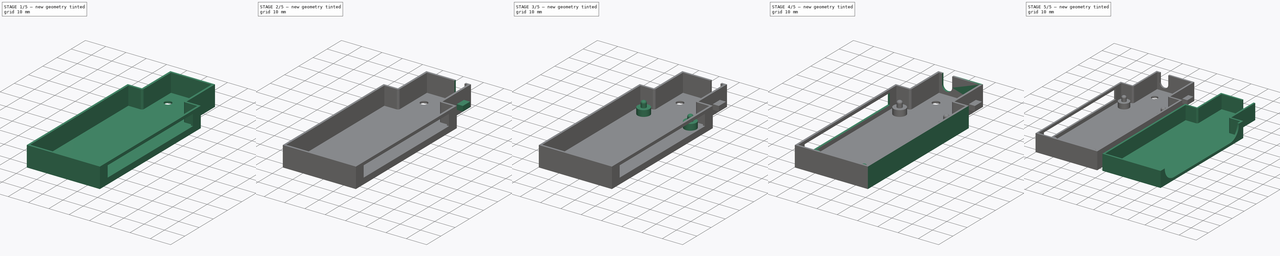
[diagram: build sequence overview — one tinted view per stage of 5, left to right]
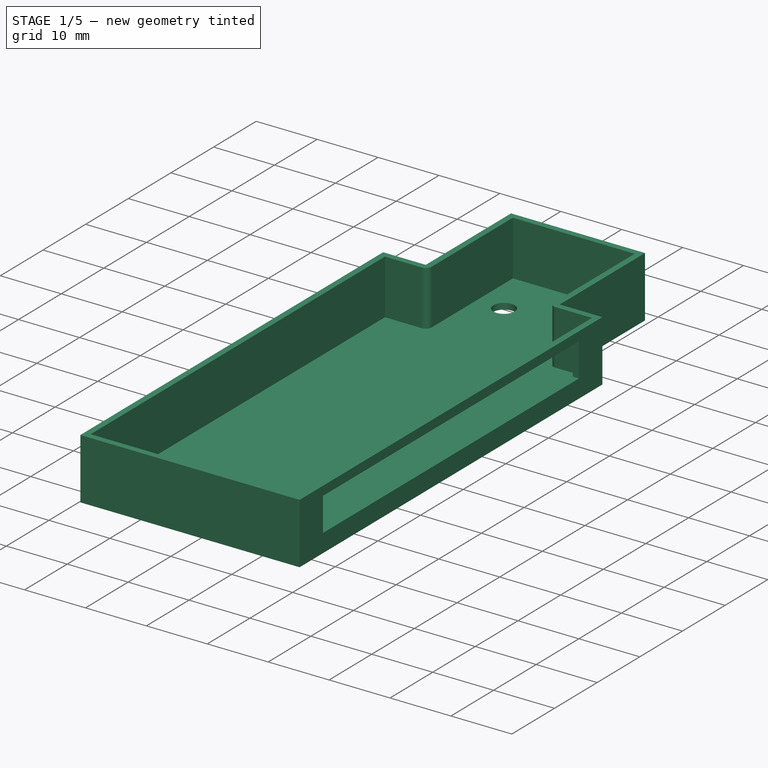
[diagram: stage 1 of 5 — iso view after this stage's code; geometry added in this stage tinted green]
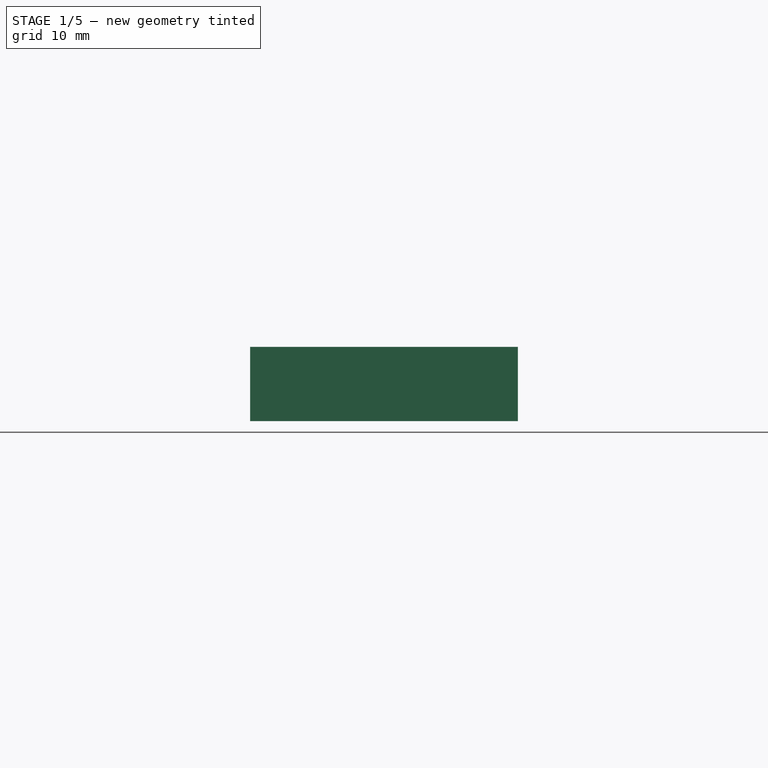
[diagram: stage 1 of 5 — front view after this stage's code; geometry added in this stage tinted green]
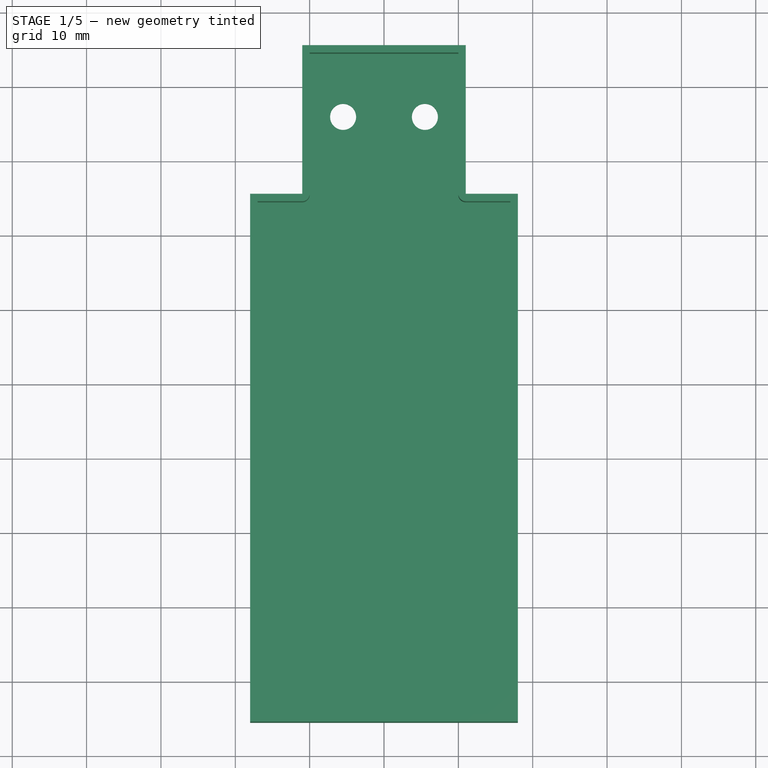
[diagram: stage 1 of 5 — top view after this stage's code; geometry added in this stage tinted green]
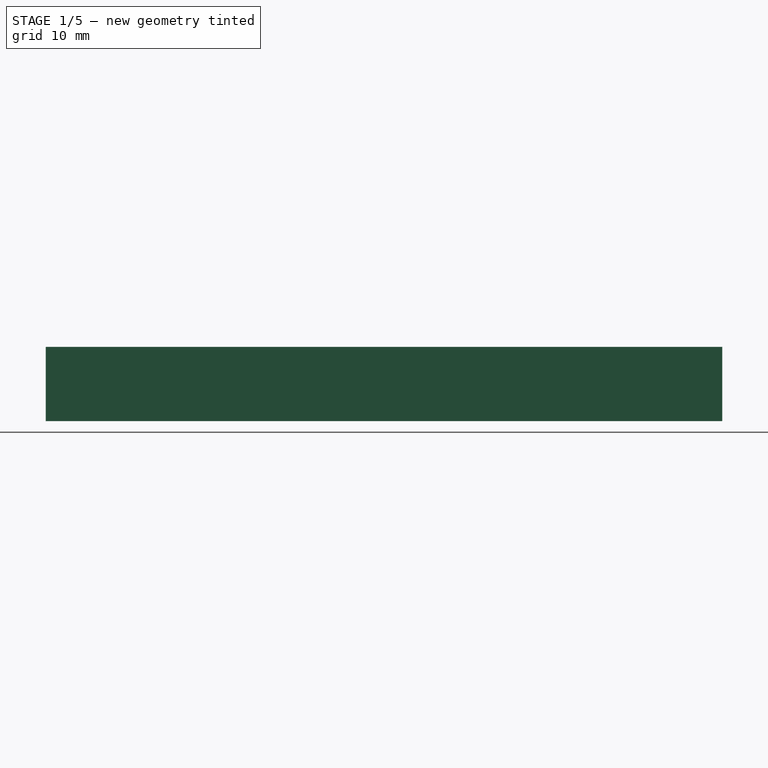
[diagram: stage 1 of 5 — right view after this stage's code; geometry added in this stage tinted green]
FCSTD DOCUMENT  (FreeCAD 0.18R4 (GitTag))
Label: BottyCase_FreeCAD
License: All rights reserved
LicenseURL: http://en.wikipedia.org/wiki/All_rights_reserved
objects: Sketcher::SketchObject×12, PartDesign::Pad×7, PartDesign::Pocket×5, PartDesign::Body×3, PartDesign::Fillet×2, PartDesign::Mirrored×2, PartDesign::Thickness×2, Part::FeaturePython×1, Part::Mirroring×1
note: 47 computed .brp shape members not serialized (recipe doc carries the construction recipe); baked Part::Feature solids carry a one-line shape summary decoded from their .brp

FEATURE [PartDesign::Body] Body  label="MountingPlate"
  Group = -> [Sketch,Pad,Sketch001,Pad001,Sketch002,Pad002,Fillet,Mirrored,Mirrored001,Fillet001]
  Origin = -> Origin
  Tip = -> Fillet001
FEATURE [Sketcher::SketchObject] Sketch003
  MapMode = 5
  Support = -> [XY_Plane001]
  sketch-geometry (8):
    g0: LineSegment StartX=-18 StartY=35.5 StartZ=0 EndX=-11 EndY=35.5 EndZ=0
    g1: LineSegment StartX=18 StartY=35.5 StartZ=0 EndX=18 EndY=-35.5 EndZ=0
    g2: LineSegment StartX=18 StartY=-35.5 StartZ=0 EndX=-18 EndY=-35.5 EndZ=0
    g3: LineSegment StartX=-18 StartY=-35.5 StartZ=0 EndX=-18 EndY=35.5 EndZ=0
    g4: LineSegment StartX=-11 StartY=55.5 StartZ=0 EndX=11 EndY=55.5 EndZ=0
    g5: LineSegment StartX=11 StartY=55.5 StartZ=0 EndX=11 EndY=35.5 EndZ=0
    g6: LineSegment StartX=-11 StartY=35.5 StartZ=0 EndX=-11 EndY=55.5 EndZ=0
    g7: LineSegment StartX=11 StartY=35.5 StartZ=0 EndX=18 EndY=35.5 EndZ=0
  constraints (20):
    c: Coincident(g7,g1)
    c: Coincident(g1,g2)
    c: Coincident(g2,g3)
    c: Coincident(g3,g0)
    c: Horizontal(g2)
    c: Vertical(g3)
    c: Symmetric(g7,g0,g-2)
    c: Symmetric(g7,g1,g-1)
    c: DistanceX(g3,g7) = 36
    c: DistanceY(g1,g1) = 71
    c: Coincident(g4,g5)
    c: Coincident(g6,g4)
    c: Vertical(g5)
    c: Vertical(g6)
    c: DistanceX(g4,g4) = 22
    c: DistanceY(g5,g5) = 20
    c: Symmetric(g4,g4,g-2)
    c: Tangent(g0,g7)
    c: Coincident(g5,g7)
    c: Coincident(g6,g0)
FEATURE [PartDesign::Pad] Pad003
  Length = 10
  Length2 = 100
  Profile = -> Sketch003
  Type = 0
FEATURE [PartDesign::Thickness] Thickness
  Base = -> Pad003 [Face10]
  BaseFeature = -> Pad003
  Join = 0
  Mode = 0
  Reversed = true
  Value = 1
FEATURE [Sketcher::SketchObject] Sketch004
  MapMode = 5
  Placement = pos=(18,0,0) rot=(0.57735,0.57735,0.57735;2.0944rad)
  Support = -> [Thickness]
  sketch-geometry (4):
    g0: LineSegment StartX=-30 StartY=3 StartZ=0 EndX=30 EndY=3 EndZ=0
    g1: LineSegment StartX=30 StartY=3 StartZ=0 EndX=30 EndY=8.5 EndZ=0
    g2: LineSegment StartX=30 StartY=8.5 StartZ=0 EndX=-30 EndY=8.5 EndZ=0
    g3: LineSegment StartX=-30 StartY=8.5 StartZ=0 EndX=-30 EndY=3 EndZ=0
  constraints (11):
    c: Coincident(g0,g1)
    c: Coincident(g1,g2)
    c: Coincident(g2,g3)
    c: Coincident(g3,g0)
    c: Horizontal(g0)
    c: Vertical(g1)
    c: Vertical(g3)
    c: Symmetric(g2,g1,g-2)
    c: DistanceX(g2,g2) = 60
    c: DistanceY(g3,g3) = 5.5
    c: DistanceY(g-1,g0) = 3
FEATURE [PartDesign::Pocket] Pocket
  BaseFeature = -> Thickness
  Length = 1
  Length2 = 100
  Profile = -> Sketch004
  Type = 0
FEATURE [Sketcher::SketchObject] Sketch005
  ExternalGeometry = -> [Pocket]
  MapMode = 5
  Placement = pos=(0,0,0) rot=(1,0,0;3.14159rad)
  Support = -> [Pocket]
  sketch-geometry (2):
    g0: Circle CenterX=5.5 CenterY=-46 CenterZ=0 NormalX=0 NormalY=0 NormalZ=1 AngleXU=0 Radius=1.75
    g1: Circle CenterX=-5.5 CenterY=-46 CenterZ=0 NormalX=0 NormalY=0 NormalZ=1 AngleXU=0 Radius=1.75
  constraints (6):
    c: Radius(g0) = 1.75
    c: DistanceX(g0,g-3) = 5.5
    c: DistanceY(g-3,g0) = 9.5
    c: Equal(g0,g1) = 1.75
    c: DistanceY(g-3,g1) = 9.5
    c: DistanceX(g-3,g1) = 5.5
FEATURE [PartDesign::Pocket] Pocket001
  BaseFeature = -> Pocket
  Length = 1
  Length2 = 100
  Profile = -> Sketch005
  Type = 0
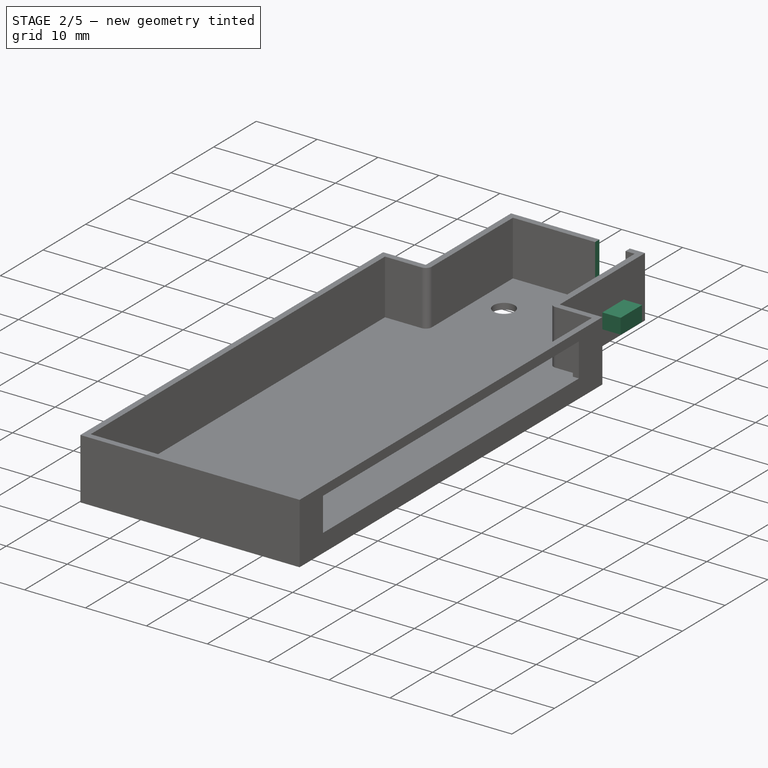
[diagram: stage 2 of 5 — iso view after this stage's code; geometry added in this stage tinted green]
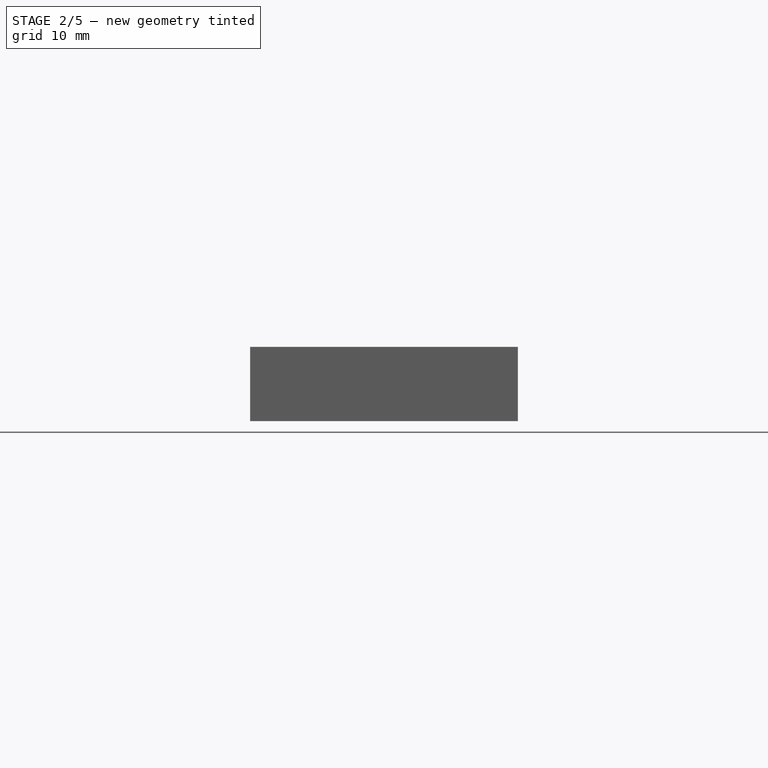
[diagram: stage 2 of 5 — front view after this stage's code; geometry added in this stage tinted green]
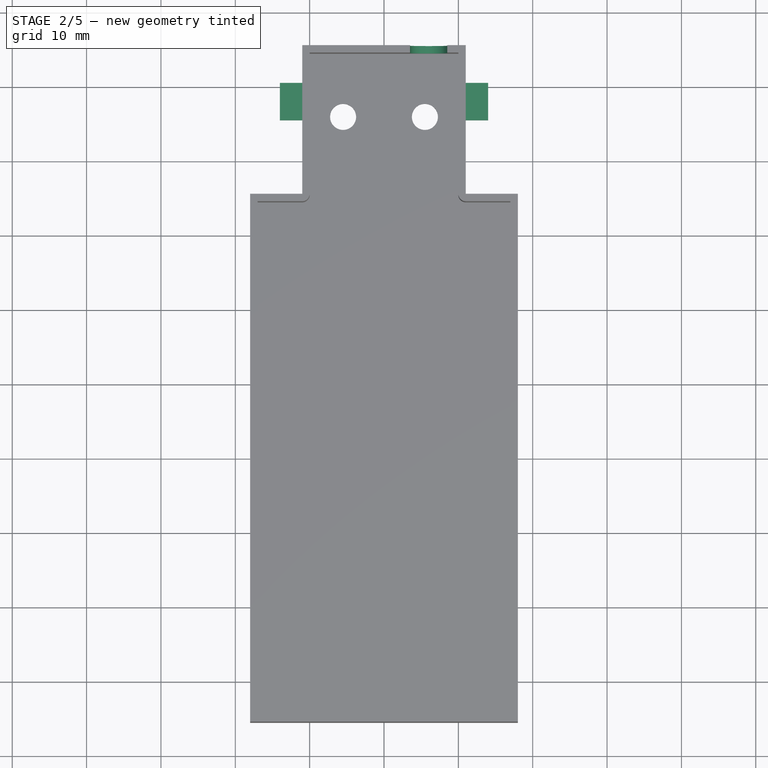
[diagram: stage 2 of 5 — top view after this stage's code; geometry added in this stage tinted green]
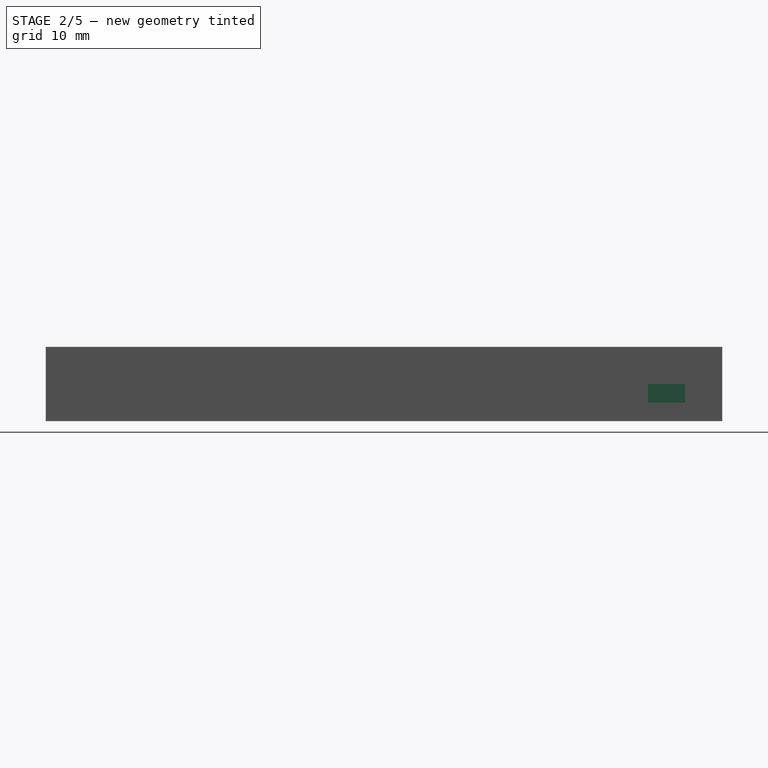
[diagram: stage 2 of 5 — right view after this stage's code; geometry added in this stage tinted green]
FEATURE [Sketcher::SketchObject] Sketch
  MapMode = 5
  Support = -> [XY_Plane]
  sketch-geometry (4):
    g0: LineSegment StartX=-15 StartY=32.5 StartZ=0 EndX=15 EndY=32.5 EndZ=0
    g1: LineSegment StartX=15 StartY=32.5 StartZ=0 EndX=15 EndY=-32.5 EndZ=0
    g2: LineSegment StartX=15 StartY=-32.5 StartZ=0 EndX=-15 EndY=-32.5 EndZ=0
    g3: LineSegment StartX=-15 StartY=-32.5 StartZ=0 EndX=-15 EndY=32.5 EndZ=0
  constraints (10):
    c: Coincident(g0,g1)
    c: Coincident(g1,g2)
    c: Coincident(g2,g3)
    c: Coincident(g3,g0)
    c: Horizontal(g2)
    c: Vertical(g1)
    c: DistanceY(g3,g3) = 65
    c: DistanceX(g0,g0) = 30
    c: Symmetric(g0,g0,g-2)
    c: Symmetric(g0,g2,g-1)
FEATURE [PartDesign::Pad] Pad  label="Base"
  Length = 1
  Length2 = 100
  Profile = -> Sketch
  Type = 0
FEATURE [PartDesign::Body] Body002  label="BackPlate"
  Group = -> [Sketch008,Pad005,Thickness001,Sketch009,Pocket003,Sketch010,Pocket004]
  Origin = -> Origin002
  Tip = -> Pocket004
FEATURE [PartDesign::Pocket] Pocket005
  Length = 5
  Length2 = 100
  Profile = -> Sketch006
  Type = 0
FEATURE [Sketcher::SketchObject] CopySketch011
  Placement = pos=(11,0,0) rot=(0.57735,0.57735,0.57735;2.0944rad)
  sketch-geometry (4):
    g0: LineSegment StartX=45.5 StartY=5 StartZ=0 EndX=50.5 EndY=5 EndZ=0
    g1: LineSegment StartX=50.5 StartY=5 StartZ=0 EndX=50.5 EndY=2.5 EndZ=0
    g2: LineSegment StartX=50.5 StartY=2.5 StartZ=0 EndX=45.5 EndY=2.5 EndZ=0
    g3: LineSegment StartX=45.5 StartY=2.5 StartZ=0 EndX=45.5 EndY=5 EndZ=0
  constraints (10):
    c: Coincident(g0,g1)
    c: Coincident(g1,g2)
    c: Coincident(g2,g3)
    c: Coincident(g3,g0)
    c: Horizontal(g0)
    c: Horizontal(g2)
    c: Vertical(g1)
    c: Vertical(g3)
    c: DistanceY(g1,g1) = 2.5
    c: DistanceX(g0,g0) = 5
FEATURE [PartDesign::Pad] Pad006
  BaseFeature = -> Pocket005
  Length = 3
  Length2 = 100
  Profile = -> CopySketch011
  Type = 0
FEATURE [Sketcher::SketchObject] Sketch012
  ExternalGeometry = -> [Pad003]
  MapMode = 5
  Placement = pos=(-11,0,0) rot=(0.57735,-0.57735,-0.57735;2.0944rad)
  Support = -> [Pad003]
  sketch-geometry (4):
    g0: LineSegment StartX=-50.5 StartY=5 StartZ=0 EndX=-45.5 EndY=5 EndZ=0
    g1: LineSegment StartX=-45.5 StartY=5 StartZ=0 EndX=-45.5 EndY=2.5 EndZ=0
    g2: LineSegment StartX=-45.5 StartY=2.5 StartZ=0 EndX=-50.5 EndY=2.5 EndZ=0
    g3: LineSegment StartX=-50.5 StartY=2.5 StartZ=0 EndX=-50.5 EndY=5 EndZ=0
  constraints (12):
    c: Coincident(g0,g1)
    c: Coincident(g1,g2)
    c: Coincident(g2,g3)
    c: Coincident(g3,g0)
    c: Horizontal(g0)
    c: Horizontal(g2)
    c: Vertical(g1)
    c: Vertical(g3)
    c: DistanceX(g-3,g0) = 5
    c: DistanceX(g2,g2) = 5
    c: DistanceY(g0,g-3) = 5
    c: DistanceY(g3,g3) = 2.5
FEATURE [PartDesign::Pad] Pad007
  BaseFeature = -> Pad006
  Length = 3
  Length2 = 100
  Profile = -> Sketch012
  Type = 0
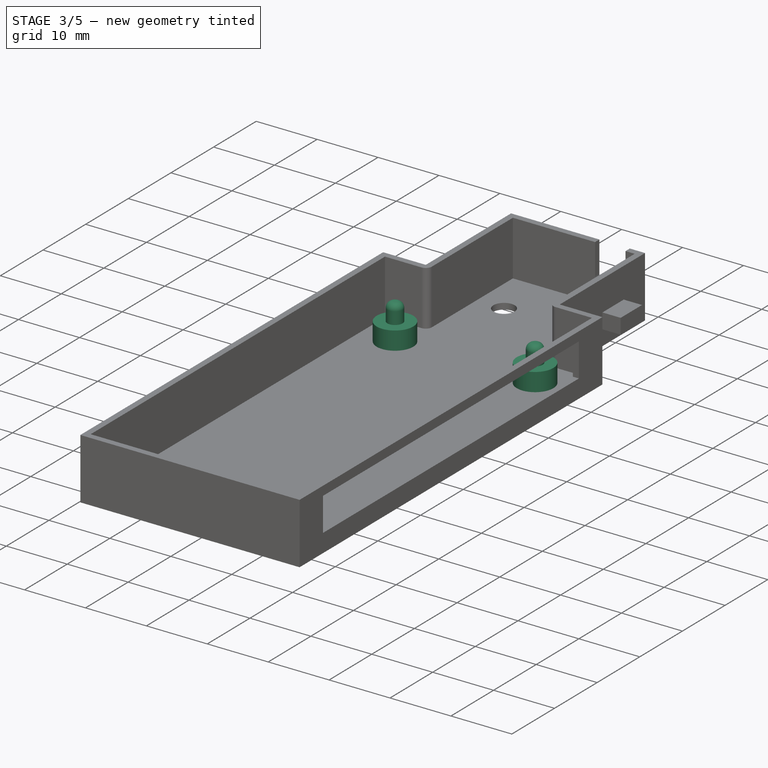
[diagram: stage 3 of 5 — iso view after this stage's code; geometry added in this stage tinted green]
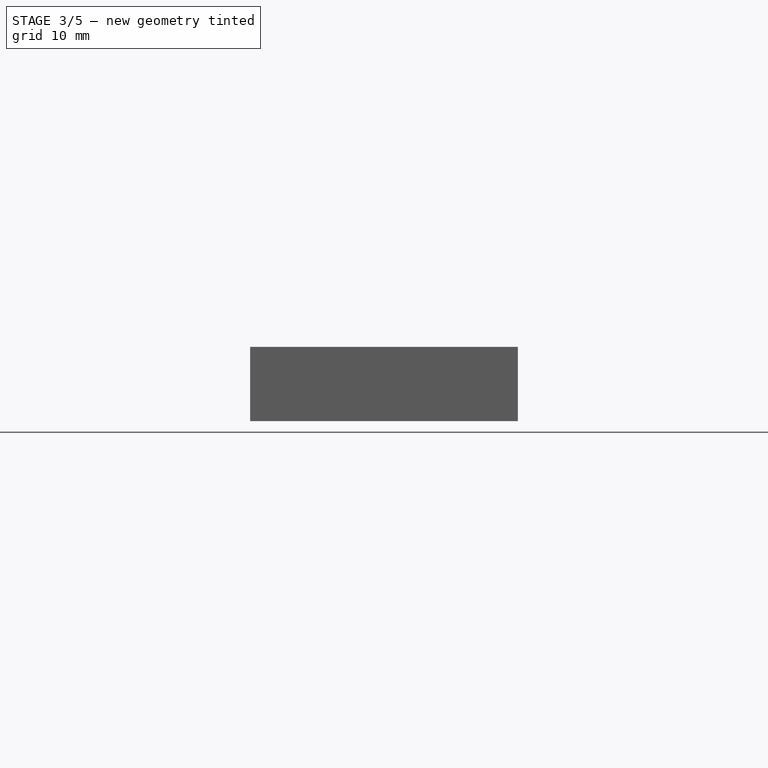
[diagram: stage 3 of 5 — front view after this stage's code; geometry added in this stage tinted green]
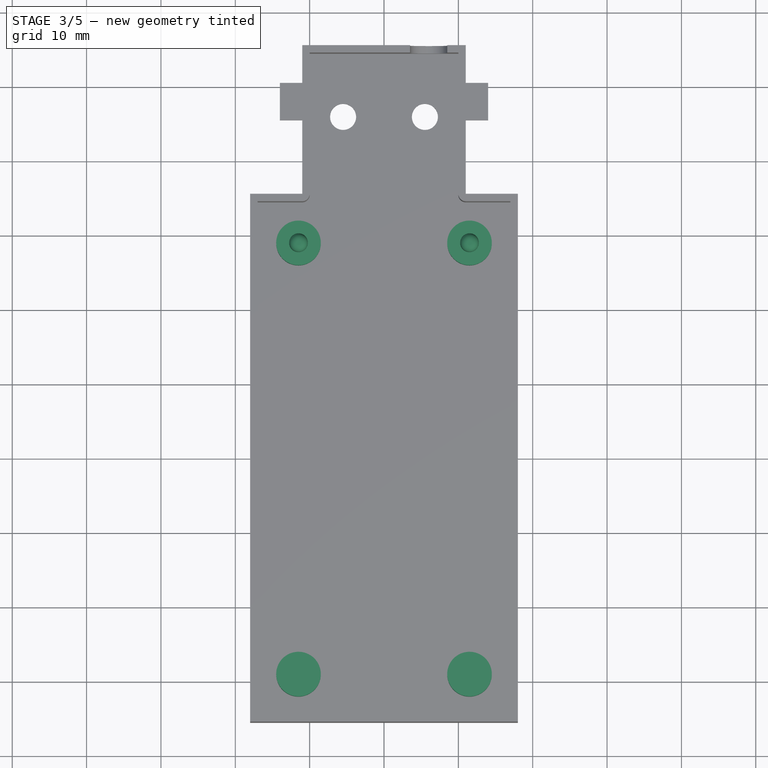
[diagram: stage 3 of 5 — top view after this stage's code; geometry added in this stage tinted green]
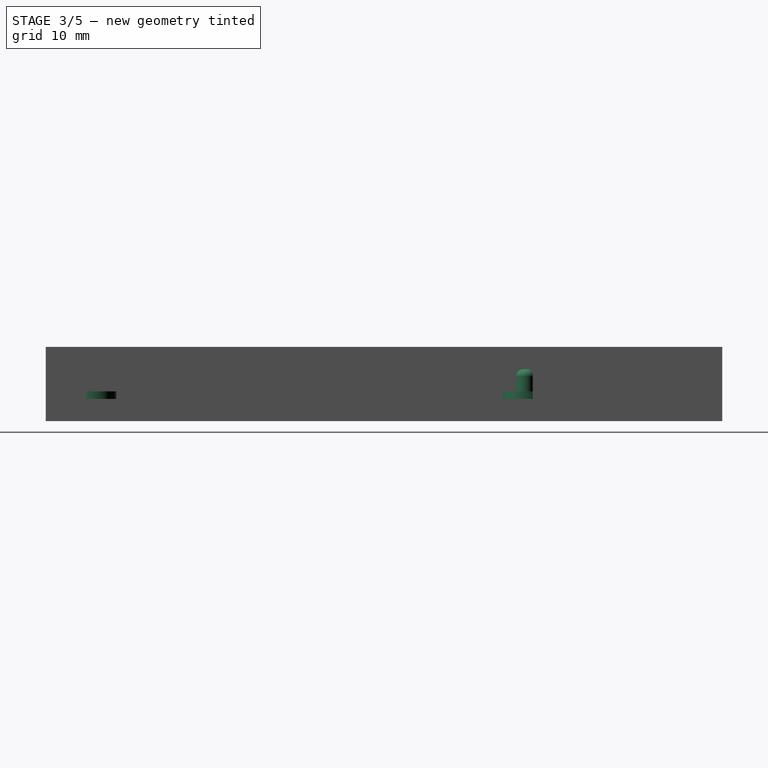
[diagram: stage 3 of 5 — right view after this stage's code; geometry added in this stage tinted green]
FEATURE [Sketcher::SketchObject] Sketch001
  ExternalGeometry = -> [Pad]
  MapMode = 5
  Placement = pos=(0,0,1) rot=(0,0,1;0rad)
  Support = -> [Pad]
  sketch-geometry (2):
    g0: Circle CenterX=-11.5 CenterY=29 CenterZ=0 NormalX=0 NormalY=0 NormalZ=1 AngleXU=0 Radius=3
    g1: Circle CenterX=11.5 CenterY=29 CenterZ=0 NormalX=0 NormalY=0 NormalZ=1 AngleXU=0 Radius=3
  constraints (6):
    c: Radius(g0) = 3
    c: DistanceX(g-3,g0) = 3.5
    c: DistanceY(g0,g-3) = 3.5
    c: Equal(g0,g1) = 3
    c: DistanceX(g1,g-3) = 3.5
    c: DistanceY(g1,g-3) = 3.5
FEATURE [PartDesign::Pad] Pad001  label="BaseMounts"
  BaseFeature = -> Pad
  Length = 3
  Length2 = 100
  Profile = -> Sketch001
  Type = 0
FEATURE [Sketcher::SketchObject] Sketch002
  ExternalGeometry = -> [Pad001]
  MapMode = 5
  Placement = pos=(0,0,4) rot=(0,0,1;0rad)
  Support = -> [Pad001]
  sketch-geometry (2):
    g0: Circle CenterX=-11.5 CenterY=29 CenterZ=0 NormalX=0 NormalY=0 NormalZ=1 AngleXU=0 Radius=1.25
    g1: Circle CenterX=11.5 CenterY=29 CenterZ=0 NormalX=0 NormalY=0 NormalZ=1 AngleXU=0 Radius=1.25
  constraints (4):
    c: Radius(g1) = 1.25
    c: Radius(g0) = 1.25
    c: Coincident(g0,g-3)
    c: Coincident(g1,g-4)
FEATURE [PartDesign::Pad] Pad002  label="MountingPegs"
  BaseFeature = -> Pad001
  Length = 3
  Length2 = 100
  Profile = -> Sketch002
  Type = 0
FEATURE [PartDesign::Fillet] Fillet
  Base = -> Pad002 [Face14,Face13]
  BaseFeature = -> Pad002
  Radius = 1
FEATURE [PartDesign::Mirrored] Mirrored
  BaseFeature = -> Fillet
  MirrorPlane = -> XZ_Plane
  Originals = -> [Pad001]
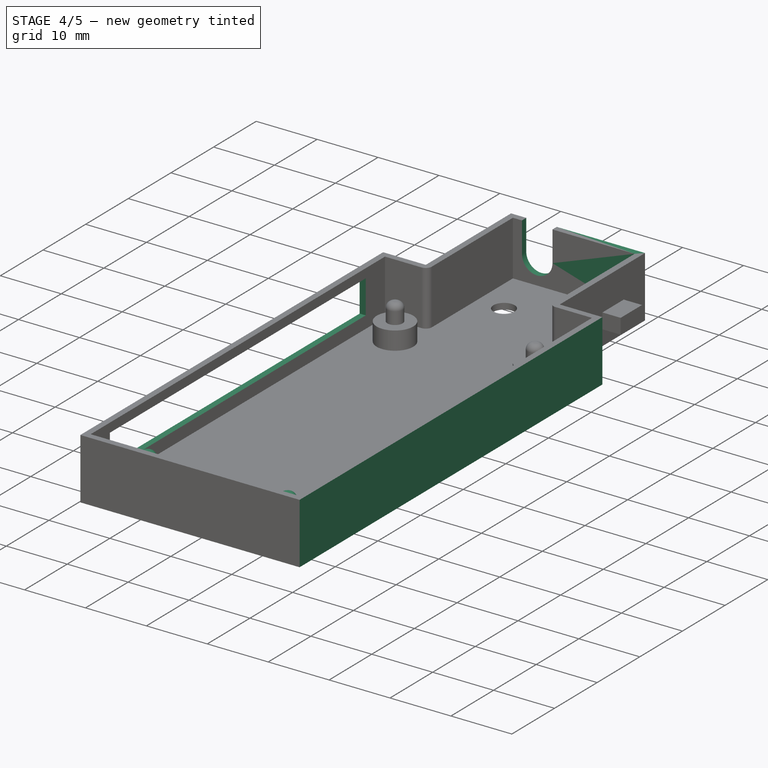
[diagram: stage 4 of 5 — iso view after this stage's code; geometry added in this stage tinted green]
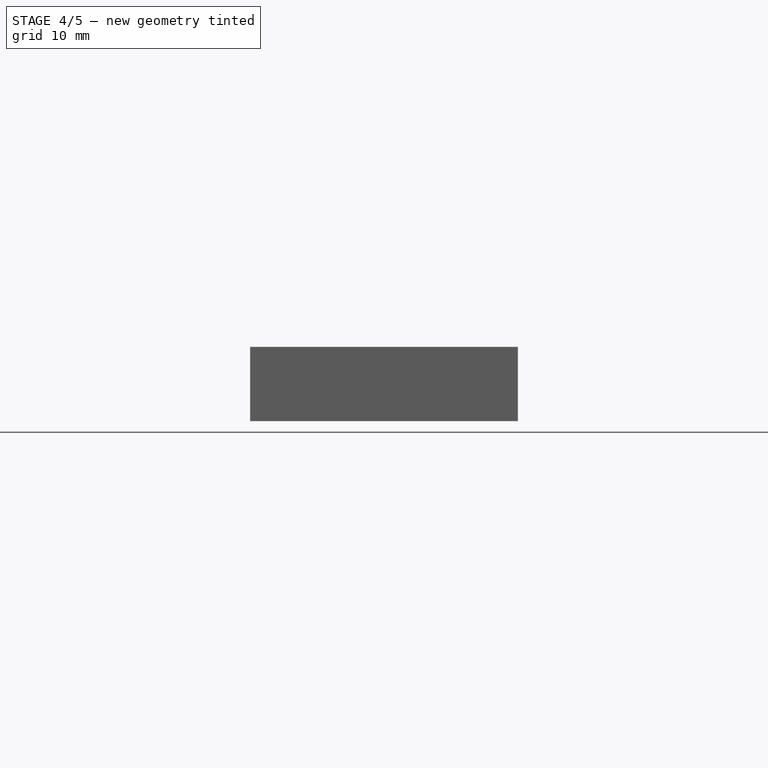
[diagram: stage 4 of 5 — front view after this stage's code; geometry added in this stage tinted green]
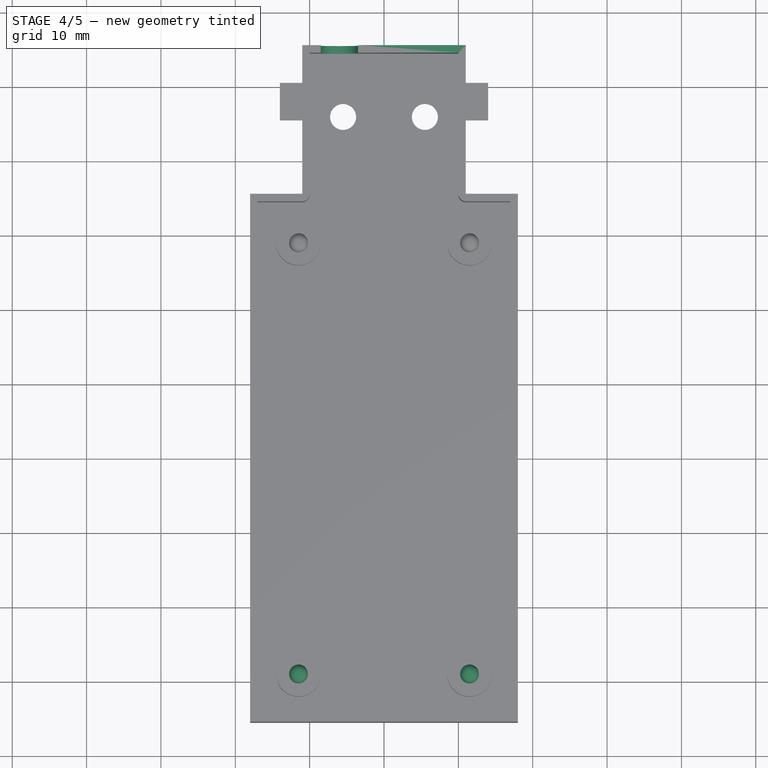
[diagram: stage 4 of 5 — top view after this stage's code; geometry added in this stage tinted green]
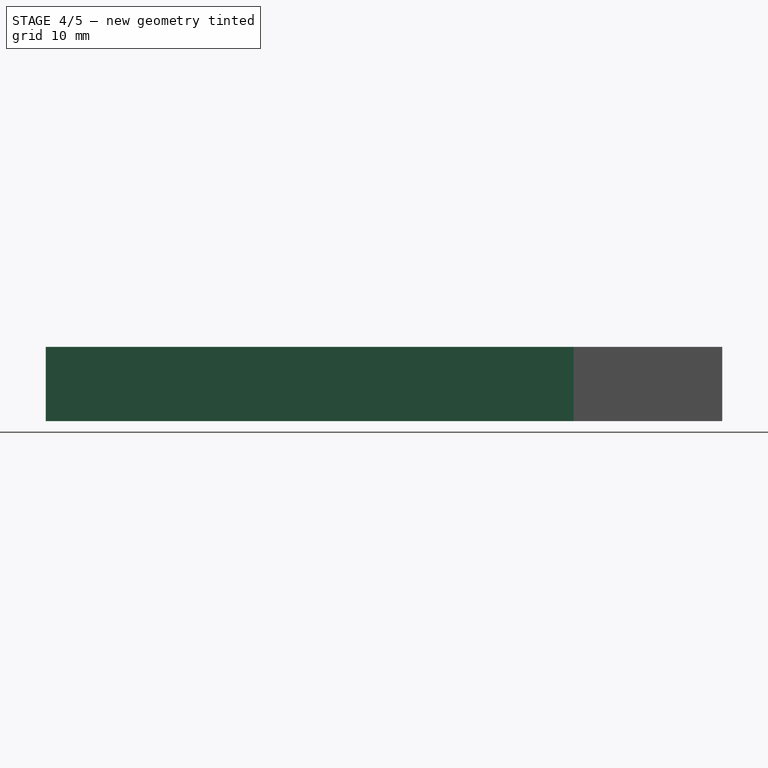
[diagram: stage 4 of 5 — right view after this stage's code; geometry added in this stage tinted green]
FEATURE [PartDesign::Mirrored] Mirrored001
  BaseFeature = -> Mirrored
  MirrorPlane = -> XZ_Plane
  Originals = -> [Pad002]
FEATURE [PartDesign::Fillet] Fillet001
  Base = -> Mirrored001 [Face23,Face22]
  BaseFeature = -> Mirrored001
  Radius = 1
FEATURE [PartDesign::Body] Body001  label="Body"
  Group = -> [Sketch003,Pad003,Sketch004,Thickness,Pocket,Sketch005,Pocket001,Sketch006,Pocket005,Pad006,Sketch012,Pad007]
  Origin = -> Origin001
  Tip = -> Pad007
FEATURE [Part::FeaturePython] Embed  label="BottyFromPlate"  # WARN: FeaturePython — macro-defined, semantics opaque (R4)
  Base = -> Body001
  Tolerance = 0
  Tool = -> Body
FEATURE [Part::Mirroring] Part__Mirroring  label="BottyFrontPlate (Mirror #1)"
  Base = (4.76837e-07,10,5)
  Normal = (1,0,-1.19209e-07)
  Source = -> Embed
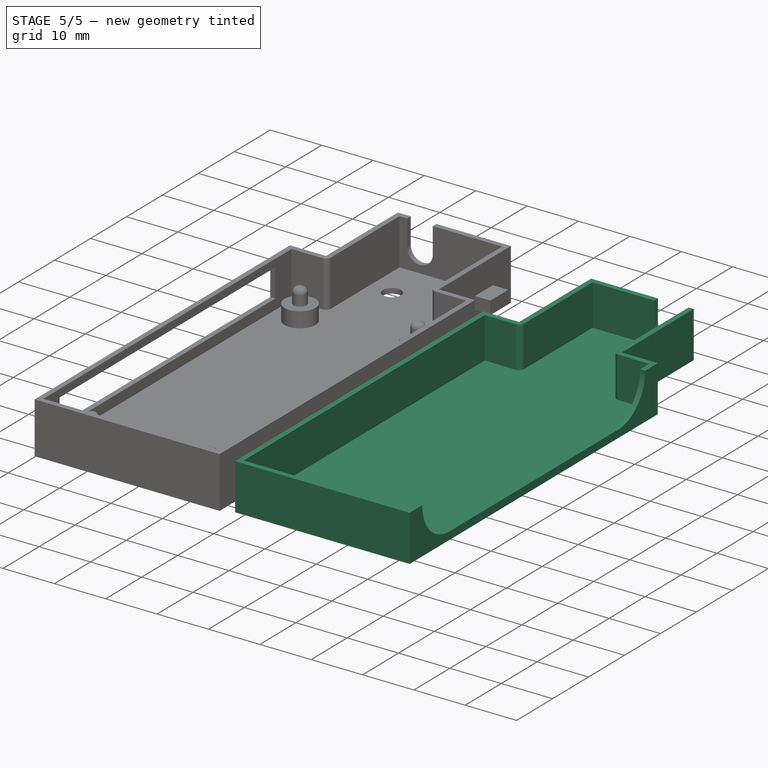
[diagram: stage 5 of 5 — iso view after this stage's code; geometry added in this stage tinted green]
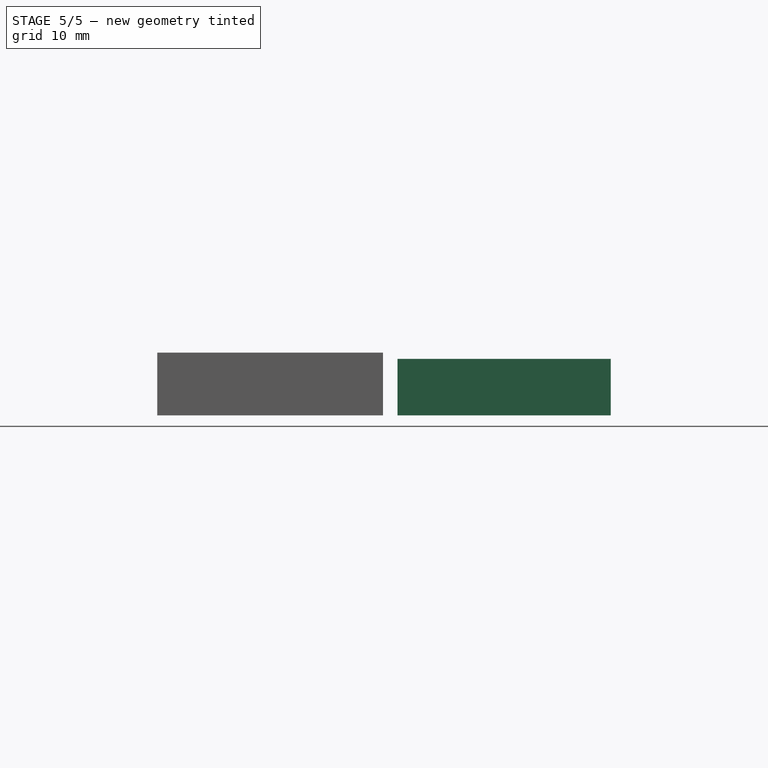
[diagram: stage 5 of 5 — front view after this stage's code; geometry added in this stage tinted green]
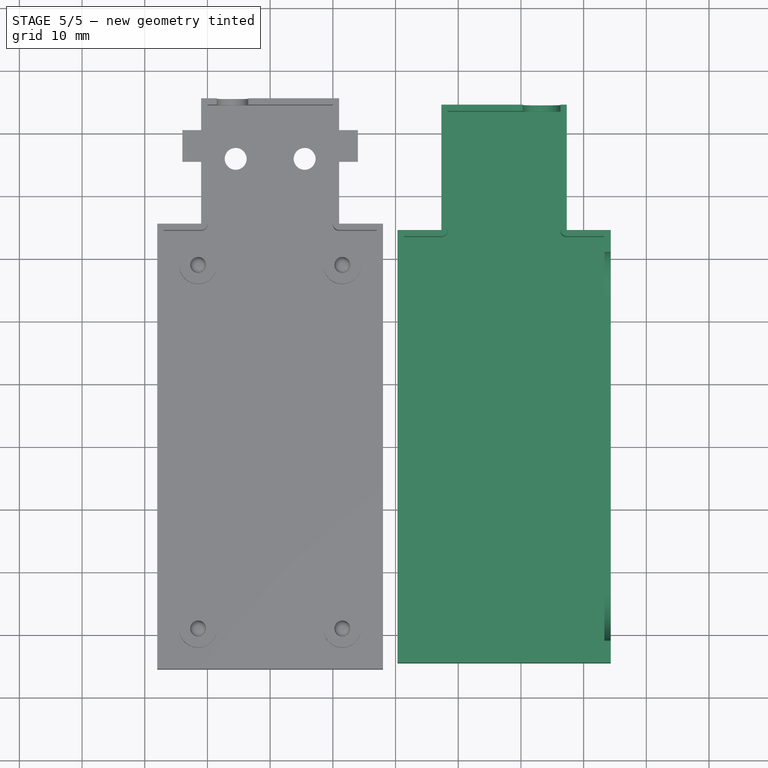
[diagram: stage 5 of 5 — top view after this stage's code; geometry added in this stage tinted green]
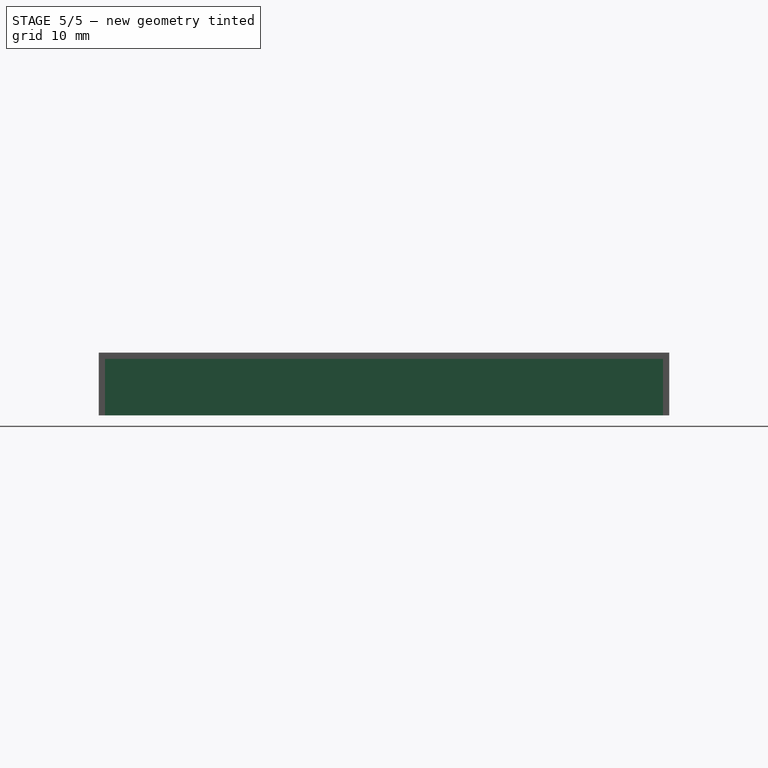
[diagram: stage 5 of 5 — right view after this stage's code; geometry added in this stage tinted green]
FEATURE [Sketcher::SketchObject] Sketch006
  ExternalGeometry = -> [Pocket001]
  MapMode = 5
  Placement = pos=(0,55.5,0) rot=(0,0.707107,0.707107;3.14159rad)
  Support = -> [Pocket001]
  sketch-geometry (4):
    g0: ArcOfCircle CenterX=-6 CenterY=5 CenterZ=0 NormalX=0 NormalY=0 NormalZ=1 AngleXU=0 Radius=2.5 StartAngle=3.14159 EndAngle=6.28319
    g1: ArcOfCircle CenterX=-6 CenterY=11 CenterZ=0 NormalX=0 NormalY=0 NormalZ=1 AngleXU=0 Radius=2.5 StartAngle=-1.34257e-11 EndAngle=3.14159
    g2: LineSegment StartX=-3.5 StartY=5 StartZ=0 EndX=-3.5 EndY=11 EndZ=0
    g3: LineSegment StartX=-8.5 StartY=5 StartZ=0 EndX=-8.5 EndY=11 EndZ=0
  constraints (10):
    c: Tangent(g0,g3) = 1.5708
    c: Tangent(g0,g2) = -1.5708
    c: Tangent(g2,g1) = -1.5708
    c: Tangent(g3,g1) = 1.5708
    c: Vertical(g2)
    c: Equal(g0,g1)
    c: Radius(g1) = 2.5
    c: DistanceX(g-4,g0) = 5
    c: DistanceY(g0,g-4) = 5
    c: DistanceY(g2,g2) = 6
FEATURE [Sketcher::SketchObject] Sketch008
  MapMode = 5
  Support = -> [XY_Plane002]
  sketch-geometry (8):
    g0: LineSegment StartX=20.3189 StartY=34.5 StartZ=0 EndX=27.3189 EndY=34.5 EndZ=0
    g1: LineSegment StartX=54.3189 StartY=34.5 StartZ=0 EndX=54.3189 EndY=-34.5 EndZ=0
    g2: LineSegment StartX=54.3189 StartY=-34.5 StartZ=0 EndX=20.3189 EndY=-34.5 EndZ=0
    g3: LineSegment StartX=20.3189 StartY=-34.5 StartZ=0 EndX=20.3189 EndY=34.5 EndZ=0
    g4: LineSegment StartX=27.3189 StartY=54.5 StartZ=0 EndX=47.3189 EndY=54.5 EndZ=0
    g5: LineSegment StartX=47.3189 StartY=54.5 StartZ=0 EndX=47.3189 EndY=34.5 EndZ=0
    g6: LineSegment StartX=27.3189 StartY=34.5 StartZ=0 EndX=27.3189 EndY=54.5 EndZ=0
    g7: LineSegment StartX=47.3189 StartY=34.5 StartZ=0 EndX=54.3189 EndY=34.5 EndZ=0
  constraints (21):
    c: Coincident(g7,g1)
    c: Coincident(g1,g2)
    c: Coincident(g2,g3)
    c: Coincident(g3,g0)
    c: Horizontal(g2)
    c: DistanceX(g3,g7) = 34
    c: DistanceY(g1,g1) = 69
    c: Coincident(g4,g5)
    c: Coincident(g6,g4)
    c: Vertical(g5)
    c: Vertical(g6)
    c: DistanceX(g4,g4) = 20
    c: DistanceY(g5,g5) = 20
    c: Tangent(g0,g7)
    c: Coincident(g5,g7)
    c: Coincident(g6,g0)
    c: Symmetric(g0,g2,g-1)
    c: Equal(g6,g5)
    c: Equal(g3,g1)
    c: DistanceX(g2,g2) = 34
    c: DistanceX(g0,g0) = 7
FEATURE [PartDesign::Pad] Pad005
  Length = 9
  Length2 = 100
  Profile = -> Sketch008
  Type = 0
FEATURE [PartDesign::Thickness] Thickness001
  Base = -> Pad005 [Face10]
  BaseFeature = -> Pad005
  Join = 0
  Mode = 0
  Reversed = true
  Value = 1
FEATURE [Sketcher::SketchObject] Sketch009  label="led_hole"
  ExternalGeometry = -> [Thickness001]
  MapMode = 5
  Placement = pos=(0,54.5,0) rot=(0,0.707107,0.707107;3.14159rad)
  Support = -> [Thickness001]
  sketch-geometry (4):
    g0: ArcOfCircle CenterX=-43.3189 CenterY=9 CenterZ=0 NormalX=0 NormalY=0 NormalZ=1 AngleXU=0 Radius=3 StartAngle=1e-16 EndAngle=3.14159
    g1: ArcOfCircle CenterX=-43.3189 CenterY=5 CenterZ=0 NormalX=0 NormalY=0 NormalZ=1 AngleXU=0 Radius=3 StartAngle=3.14159 EndAngle=6.28319
    g2: LineSegment StartX=-46.3189 StartY=9 StartZ=0 EndX=-46.3189 EndY=5 EndZ=0
    g3: LineSegment StartX=-40.3189 StartY=9 StartZ=0 EndX=-40.3189 EndY=5 EndZ=0
  constraints (10):
    c: Tangent(g0,g3) = 1.5708
    c: Tangent(g0,g2) = -1.5708
    c: Tangent(g2,g1) = -1.5708
    c: Tangent(g3,g1) = 1.5708
    c: Vertical(g2)
    c: Equal(g0,g1)
    c: DistanceX(g1,g1) = 6
    c: DistanceX(g-3,g1) = 1
    c: DistanceY(g1,g-3) = 4
    c: DistanceY(g3,g3) = 4
FEATURE [PartDesign::Pocket] Pocket003
  BaseFeature = -> Thickness001
  Length = 1
  Length2 = 100
  Profile = -> Sketch009
  Type = 0
FEATURE [Sketcher::SketchObject] Sketch010  label="side_connector_hole"
  ExternalGeometry = -> [Pocket003]
  MapMode = 5
  Placement = pos=(54.3189,0,0) rot=(0.57735,0.57735,0.57735;2.0944rad)
  Support = -> [Pocket003]
  sketch-geometry (6):
    g0: ArcOfCircle CenterX=23.5 CenterY=9 CenterZ=0 NormalX=0 NormalY=0 NormalZ=1 AngleXU=0 Radius=7.5 StartAngle=4.71239 EndAngle=7.85398
    g1: ArcOfCircle CenterX=-23.5 CenterY=9 CenterZ=0 NormalX=0 NormalY=0 NormalZ=1 AngleXU=0 Radius=7.5 StartAngle=1.5708 EndAngle=4.71239
    g2: LineSegment StartX=23.5 StartY=16.5 StartZ=0 EndX=-23.5 EndY=16.5 EndZ=0
    g3: LineSegment StartX=23.5 StartY=1.5 StartZ=0 EndX=-23.5 EndY=1.5 EndZ=0
    g4: LineSegment [constr] StartX=-31 StartY=9 StartZ=0 EndX=-31 EndY=0 EndZ=0
    g5: LineSegment [constr] StartX=31 StartY=9 StartZ=0 EndX=31 EndY=0 EndZ=0
  constraints (15):
    c: Tangent(g0,g3) = 1.5708
    c: Tangent(g0,g2) = -1.5708
    c: Tangent(g2,g1) = -1.5708
    c: Tangent(g3,g1) = 1.5708
    c: Horizontal(g2)
    c: DistanceY(g-4,g1) = 1.5
    c: DistanceX(g-3,g4) = 3.5
    c: Tangent(g4,g1)
    c: DistanceX(g5,g-3) = 3.5
    c: Symmetric(g1,g0,g-2)
    c: Radius(g0) = 7.5
    c: DistanceY(g4,g4) = 9
    c: DistanceY(g5,g5) = 9
    c: Perpendicular(g5,g-3) = 4.71239
    c: Perpendicular(g4,g-3) = 4.71239
FEATURE [PartDesign::Pocket] Pocket004
  BaseFeature = -> Pocket003
  Length = 1
  Length2 = 100
  Profile = -> Sketch010
  Type = 0
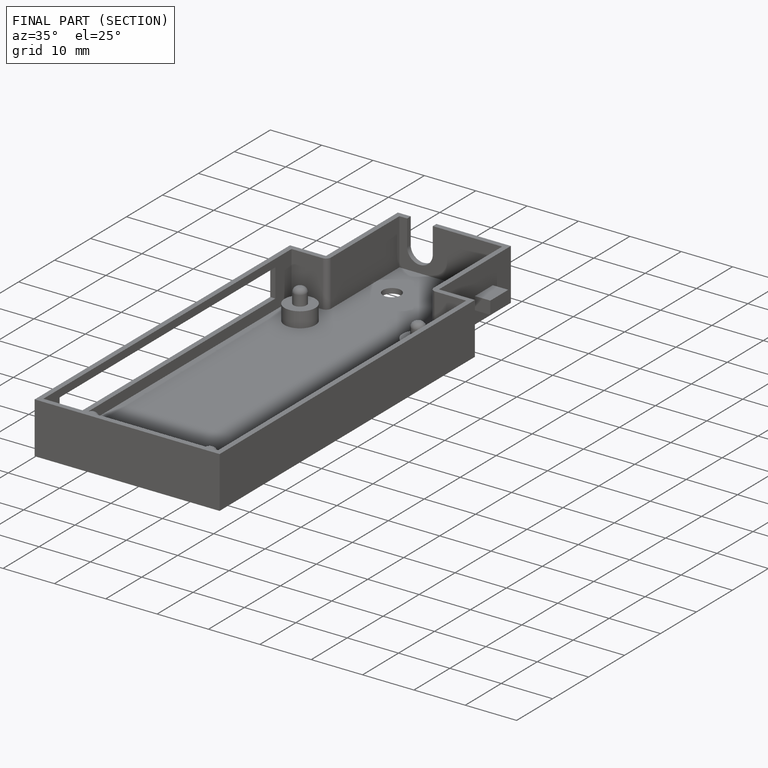
[diagram: finished part — half-section view (interior)]
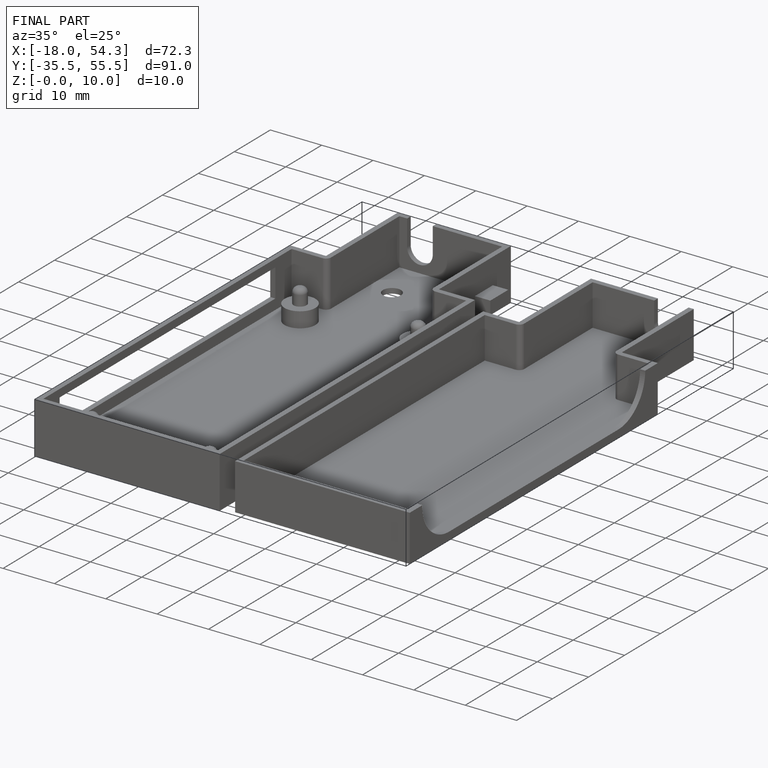
[diagram: finished part — iso view with bounding-box wireframe]
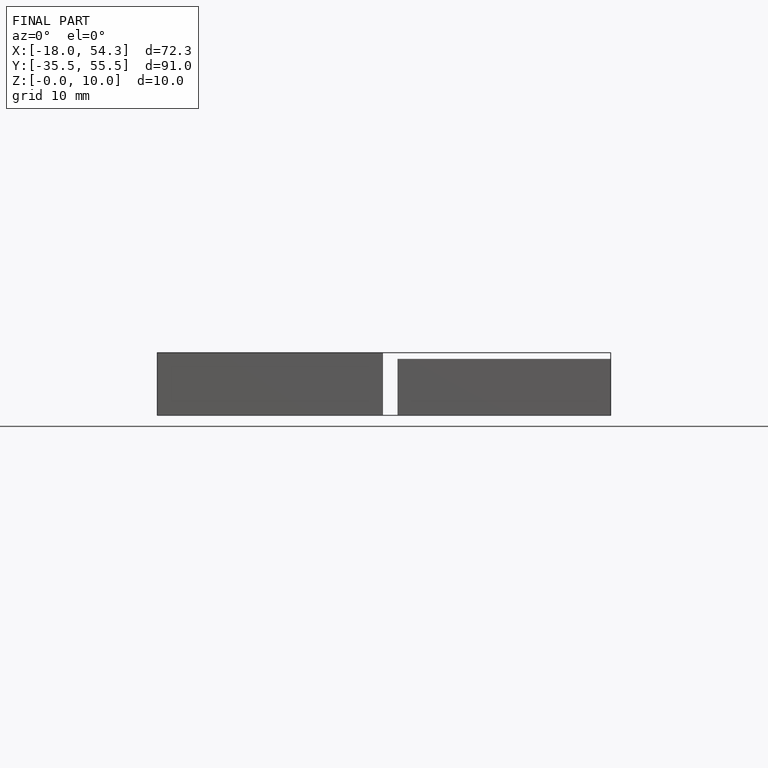
[diagram: finished part — front view with bounding-box wireframe]
